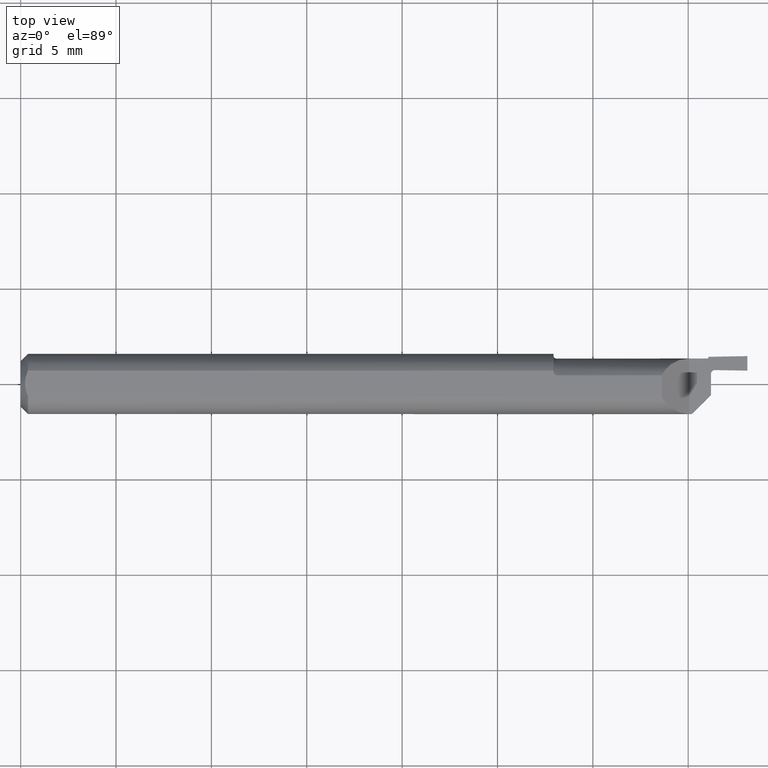
[diagram: clean part render]
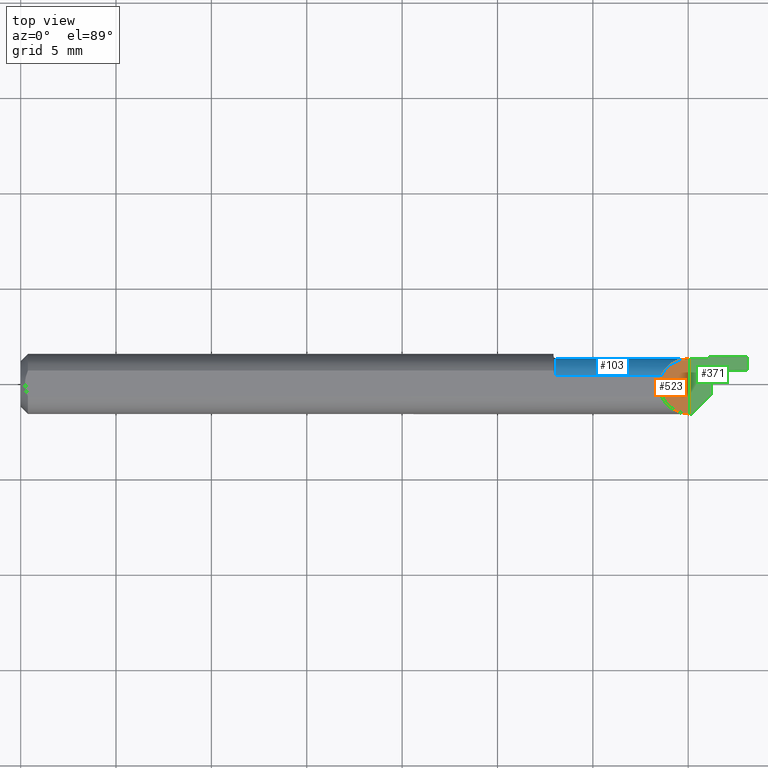
[diagram: same view with three faces highlighted in distinct colors, each labeled with its STEP entity id]
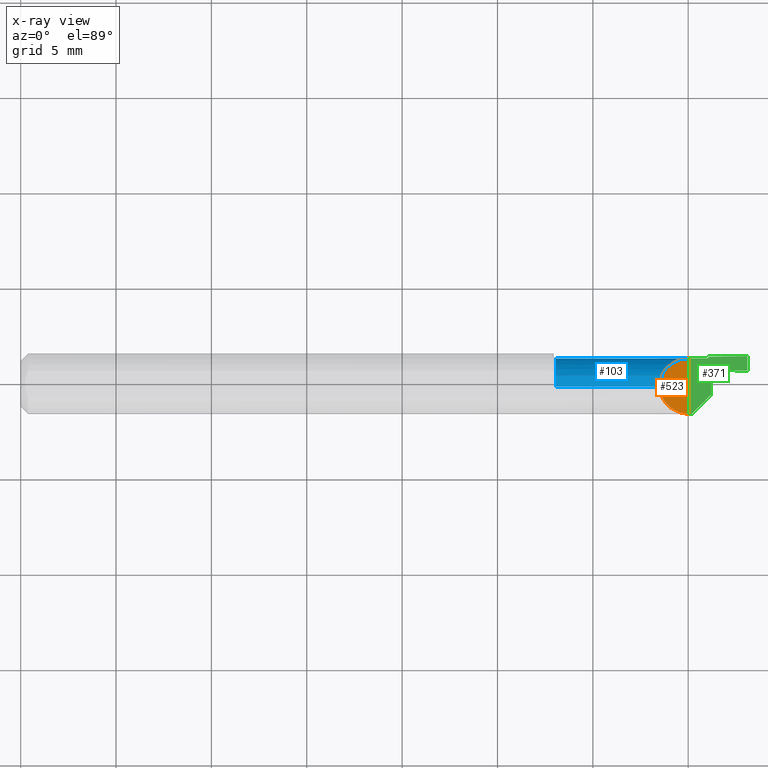
[diagram: x-ray of the same camera — body ghosted, the three highlighted faces saturated]
A machine part, top view with three faces highlighted in distinct colors.
The next image is the same camera in x-ray (body ghosted, the three faces saturated) — at least one of them is partly hidden behind the body in this view.
Their STEP definitions:

[orange] entity #523 — the highlighted planar face has unit normal (0.7071, -0, 0.7071).
#53 = CARTESIAN_POINT ( 'NONE',  ( 1.323499999999999677, -0.02668707552355638682, 0.05634999999999998344 ) ) ;
#78 = CARTESIAN_POINT ( 'NONE',  ( 1.323499999999999677, -0.02668707552355638682, 0.05634999999999998344 ) ) ;
#116 = ORIENTED_EDGE ( 'NONE', *, *, #660, .F. ) ;
#184 = VERTEX_POINT ( 'NONE', #294 ) ;
#199 = LINE ( 'NONE', #799, #829 ) ;
#205 = DIRECTION ( 'NONE',  ( -0.000000000000000000, 1.000000000000000000, 0.000000000000000000 ) ) ;
#211 = DIRECTION ( 'NONE',  ( 0.000000000000000000, -1.000000000000000000, 0.000000000000000000 ) ) ;
#216 = CARTESIAN_POINT ( 'NONE',  ( 1.334111011196256191, -0.04909232110324725923, 0.04573898880374377418 ) ) ;
#224 = CARTESIAN_POINT ( 'NONE',  ( 1.379849999999998911, -0.06235000000000000264, 0.000000000000000000 ) ) ;
#264 = VERTEX_POINT ( 'NONE', #661 ) ;
#275 = ORIENTED_EDGE ( 'NONE', *, *, #469, .F. ) ;
#294 = CARTESIAN_POINT ( 'NONE',  ( 1.379849999999998911, 0.05234923835978042006, 0.000000000000000000 ) ) ;
#296 = CARTESIAN_POINT ( 'NONE',  ( 1.380000000000000115, 0.1623500000000000498, -0.0001500000000009617284 ) ) ;
#318 =( BOUNDED_CURVE ( )  B_SPLINE_CURVE ( 3, ( #407, #416, #496, #341 ),
 .UNSPECIFIED., .F., .T. ) 
 B_SPLINE_CURVE_WITH_KNOTS ( ( 4, 4 ),
 ( 4.712388980384691450, 5.835843171780464189 ),
 .UNSPECIFIED. ) 
 CURVE ( )  GEOMETRIC_REPRESENTATION_ITEM ( )  RATIONAL_B_SPLINE_CURVE ( ( 1.000000000000000000, 0.8975576256340724868, 0.8975576256340724868, 1.000000000000000000 ) ) 
 REPRESENTATION_ITEM ( '' )  );
#320 = VERTEX_POINT ( 'NONE', #53 ) ;
#322 =( BOUNDED_CURVE ( )  B_SPLINE_CURVE ( 3, ( #224, #558, #216, #78 ),
 .UNSPECIFIED., .F., .T. ) 
 B_SPLINE_CURVE_WITH_KNOTS ( ( 4, 4 ),
 ( 4.712388980384690562, 5.840883988228529944 ),
 .UNSPECIFIED. ) 
 CURVE ( )  GEOMETRIC_REPRESENTATION_ITEM ( )  RATIONAL_B_SPLINE_CURVE ( ( 1.000000000000000000, 0.8966608397084915305, 0.8966608397084915305, 1.000000000000000000 ) ) 
 REPRESENTATION_ITEM ( '' )  );
#341 = CARTESIAN_POINT ( 'NONE',  ( 1.323499999999999677, 0.01688490924104376137, 0.05635000000000000425 ) ) ;
#393 = ORIENTED_EDGE ( 'NONE', *, *, #410, .T. ) ;
#407 = CARTESIAN_POINT ( 'NONE',  ( 1.379849999999998911, 0.05234923835978042006, 0.000000000000000000 ) ) ;
#408 = EDGE_CURVE ( 'NONE', #320, #264, #199, .T. ) ;
#410 = EDGE_CURVE ( 'NONE', #184, #264, #318, .T. ) ;
#416 = CARTESIAN_POINT ( 'NONE',  ( 1.355123235926974923, 0.05234923835978042700, 0.02472676407302463325 ) ) ;
#429 = CARTESIAN_POINT ( 'NONE',  ( 1.379849999999998911, -0.06235000000000000264, 0.000000000000000000 ) ) ;
#469 = EDGE_CURVE ( 'NONE', #184, #535, #794, .T. ) ;
#496 = CARTESIAN_POINT ( 'NONE',  ( 1.334196074486990735, 0.03917855972928278863, 0.04565392551300904989 ) ) ;
#509 = AXIS2_PLACEMENT_3D ( 'NONE', #296, #825, #833 ) ;
#515 = ORIENTED_EDGE ( 'NONE', *, *, #408, .F. ) ;
#523 = ADVANCED_FACE ( 'NONE', ( #646 ), #819, .T. ) ;
#535 = VERTEX_POINT ( 'NONE', #429 ) ;
#552 = CARTESIAN_POINT ( 'NONE',  ( 1.379849999999998911, -0.1623500000000000498, 0.000000000000000000 ) ) ;
#558 = CARTESIAN_POINT ( 'NONE',  ( 1.355059102717058428, -0.06235000000000000958, 0.02479089728294102402 ) ) ;
#646 = FACE_OUTER_BOUND ( 'NONE', #738, .T. ) ;
#660 = EDGE_CURVE ( 'NONE', #535, #320, #322, .T. ) ;
#661 = CARTESIAN_POINT ( 'NONE',  ( 1.323499999999999677, 0.01688490924104376137, 0.05635000000000000425 ) ) ;
#738 = EDGE_LOOP ( 'NONE', ( #275, #393, #515, #116 ) ) ;
#761 = VECTOR ( 'NONE', #211, 39.37007874015748143 ) ;
#794 = LINE ( 'NONE', #552, #761 ) ;
#799 = CARTESIAN_POINT ( 'NONE',  ( 1.323499999999999677, 0.02668707552355638682, 0.05635000000000000425 ) ) ;
#819 = PLANE ( 'NONE',  #509 ) ;
#825 = DIRECTION ( 'NONE',  ( 0.7071067811865514585, -0.000000000000000000, 0.7071067811865436870 ) ) ;
#829 = VECTOR ( 'NONE', #205, 39.37007874015748143 ) ;
#833 = DIRECTION ( 'NONE',  ( 0.7071067811865435759, 0.000000000000000000, -0.7071067811865513475 ) ) ;

[blue] entity #103 — the highlighted cylindrical surface (edge-blend (fillet) strip) has radius 1.5875 mm, axis along (-1, -0, -0).
#6 = CARTESIAN_POINT ( 'NONE',  ( 1.414646748416369837, 0.04911742446637919202, -0.01986130268372147262 ) ) ;
#13 = CIRCLE ( 'NONE', #731, 0.06249999999999999306 ) ;
#16 = DIRECTION ( 'NONE',  ( -1.000000000000000000, -0.000000000000000000, -0.000000000000000000 ) ) ;
#19 = LINE ( 'NONE', #225, #698 ) ;
#21 = CARTESIAN_POINT ( 'NONE',  ( 1.417000000000000259, -0.01015076164021955218, 0.000000000000000000 ) ) ;
#24 = ORIENTED_EDGE ( 'NONE', *, *, #386, .T. ) ;
#66 = DIRECTION ( 'NONE',  ( 1.000000000000000000, 0.000000000000000000, 0.000000000000000000 ) ) ;
#73 = CARTESIAN_POINT ( 'NONE',  ( 1.412866610771963627, 0.04058328200904658817, -0.03650077827929641694 ) ) ;
#75 = VERTEX_POINT ( 'NONE', #73 ) ;
#77 = CARTESIAN_POINT ( 'NONE',  ( 1.412954748534647864, 0.04489863580460894121, -0.02986149759486148372 ) ) ;
#93 = VECTOR ( 'NONE', #712, 39.37007874015748143 ) ;
#103 = ADVANCED_FACE ( 'NONE', ( #415 ), #736, .T. ) ;
#109 = AXIS2_PLACEMENT_3D ( 'NONE', #123, #676, #274 ) ;
#123 = CARTESIAN_POINT ( 'NONE',  ( 1.269052852351982619, -0.01015076164021955218, 0.000000000000000000 ) ) ;
#127 = CARTESIAN_POINT ( 'NONE',  ( 1.269052852351982619, 0.05234923835978044088, 0.000000000000000000 ) ) ;
#140 = ORIENTED_EDGE ( 'NONE', *, *, #410, .F. ) ;
#148 = DIRECTION ( 'NONE',  ( 0.000000000000000000, 0.000000000000000000, 1.000000000000000000 ) ) ;
#152 = EDGE_CURVE ( 'NONE', #170, #612, #19, .T. ) ;
#156 = EDGE_LOOP ( 'NONE', ( #376, #140, #24, #210, #848, #547, #746, #381 ) ) ;
#170 = VERTEX_POINT ( 'NONE', #213 ) ;
#179 = EDGE_CURVE ( 'NONE', #522, #612, #851, .T. ) ;
#184 = VERTEX_POINT ( 'NONE', #294 ) ;
#188 = VECTOR ( 'NONE', #66, 39.37007874015748143 ) ;
#210 = ORIENTED_EDGE ( 'NONE', *, *, #392, .T. ) ;
#213 = CARTESIAN_POINT ( 'NONE',  ( 1.413647483962142459, -0.004152913094841584503, -0.06221154083308579746 ) ) ;
#225 = CARTESIAN_POINT ( 'NONE',  ( 1.261000000000000121, -0.004152913094840908828, -0.06221154083308578359 ) ) ;
#249 = LINE ( 'NONE', #775, #93 ) ;
#264 = VERTEX_POINT ( 'NONE', #661 ) ;
#265 = CARTESIAN_POINT ( 'NONE',  ( 1.412866610771963627, 0.04058328200904658817, -0.03650077827929641694 ) ) ;
#271 = CARTESIAN_POINT ( 'NONE',  ( 1.413647483962142459, -0.004152913094841584503, -0.06221154083308579746 ) ) ;
#274 = DIRECTION ( 'NONE',  ( 0.000000000000000000, 0.000000000000000000, 1.000000000000000000 ) ) ;
#276 = DIRECTION ( 'NONE',  ( -1.000000000000000000, -0.000000000000000000, -0.000000000000000000 ) ) ;
#289 = DIRECTION ( 'NONE',  ( 0.000000000000000000, 0.000000000000000000, 1.000000000000000000 ) ) ;
#294 = CARTESIAN_POINT ( 'NONE',  ( 1.379849999999998911, 0.05234923835978042006, 0.000000000000000000 ) ) ;
#318 =( BOUNDED_CURVE ( )  B_SPLINE_CURVE ( 3, ( #407, #416, #496, #341 ),
 .UNSPECIFIED., .F., .T. ) 
 B_SPLINE_CURVE_WITH_KNOTS ( ( 4, 4 ),
 ( 4.712388980384691450, 5.835843171780464189 ),
 .UNSPECIFIED. ) 
 CURVE ( )  GEOMETRIC_REPRESENTATION_ITEM ( )  RATIONAL_B_SPLINE_CURVE ( ( 1.000000000000000000, 0.8975576256340724868, 0.8975576256340724868, 1.000000000000000000 ) ) 
 REPRESENTATION_ITEM ( '' )  );
#327 = LINE ( 'NONE', #127, #188 ) ;
#341 = CARTESIAN_POINT ( 'NONE',  ( 1.323499999999999677, 0.01688490924104376137, 0.05635000000000000425 ) ) ;
#343 =( BOUNDED_CURVE ( )  B_SPLINE_CURVE ( 3, ( #670, #624, #481, #271 ),
 .UNSPECIFIED., .F., .T. ) 
 B_SPLINE_CURVE_WITH_KNOTS ( ( 4, 4 ),
 ( 0.6236629505347224267, 1.474682838833132337 ),
 .UNSPECIFIED. ) 
 CURVE ( )  GEOMETRIC_REPRESENTATION_ITEM ( )  RATIONAL_B_SPLINE_CURVE ( ( 1.000000000000000000, 0.9405522359588430747, 0.9405522359588430747, 1.000000000000000000 ) ) 
 REPRESENTATION_ITEM ( '' )  );
#346 = CARTESIAN_POINT ( 'NONE',  ( 1.414926136538871670, 0.04941713199400455531, -0.01894169350003658409 ) ) ;
#355 = VERTEX_POINT ( 'NONE', #847 ) ;
#356 = CARTESIAN_POINT ( 'NONE',  ( 1.413936235654420948, 0.04815098449156212518, -0.02260339161782109335 ) ) ;
#376 = ORIENTED_EDGE ( 'NONE', *, *, #625, .T. ) ;
#377 = CARTESIAN_POINT ( 'NONE',  ( 1.104999999999999982, 0.01688490924104400076, 0.05634999999999998344 ) ) ;
#381 = ORIENTED_EDGE ( 'NONE', *, *, #179, .F. ) ;
#386 = EDGE_CURVE ( 'NONE', #184, #656, #327, .T. ) ;
#392 = EDGE_CURVE ( 'NONE', #656, #355, #13, .T. ) ;
#407 = CARTESIAN_POINT ( 'NONE',  ( 1.379849999999998911, 0.05234923835978042006, 0.000000000000000000 ) ) ;
#410 = EDGE_CURVE ( 'NONE', #184, #264, #318, .T. ) ;
#413 = CARTESIAN_POINT ( 'NONE',  ( 1.413634766017836553, 0.04740970941206705536, -0.02443391028162558709 ) ) ;
#415 = FACE_OUTER_BOUND ( 'NONE', #156, .T. ) ;
#416 = CARTESIAN_POINT ( 'NONE',  ( 1.355123235926974923, 0.05234923835978042700, 0.02472676407302463325 ) ) ;
#423 = DIRECTION ( 'NONE',  ( -1.000000000000000000, -0.000000000000000000, -0.000000000000000000 ) ) ;
#447 = EDGE_CURVE ( 'NONE', #355, #75, #482, .T. ) ;
#481 = CARTESIAN_POINT ( 'NONE',  ( 1.413329765481138089, 0.01404916649128679779, -0.06045666842345646247 ) ) ;
#482 = B_SPLINE_CURVE_WITH_KNOTS ( 'NONE', 3,
 ( #605, #752, #749, #346, #6, #356, #413, #77, #619, #265 ),
 .UNSPECIFIED., .F., .F.,
 ( 4, 2, 2, 2, 4 ),
 ( 2.238282517017819589E-07, 7.693498073236771848E-05, 0.0001536461332130336613, 0.0003070684381743656825, 0.0006139130480970296164 ),
 .UNSPECIFIED. ) ;
#496 = CARTESIAN_POINT ( 'NONE',  ( 1.334196074486990735, 0.03917855972928278863, 0.04565392551300904989 ) ) ;
#522 = VERTEX_POINT ( 'NONE', #377 ) ;
#547 = ORIENTED_EDGE ( 'NONE', *, *, #638, .T. ) ;
#605 = CARTESIAN_POINT ( 'NONE',  ( 1.416999999999997817, 0.05034810659660593490, -0.01568875208750613454 ) ) ;
#612 = VERTEX_POINT ( 'NONE', #840 ) ;
#616 = CARTESIAN_POINT ( 'NONE',  ( 1.417000000000000259, 0.05234923835978044088, 0.000000000000000000 ) ) ;
#619 = CARTESIAN_POINT ( 'NONE',  ( 1.412826172858775209, 0.04289996850538967815, -0.03328071341032889929 ) ) ;
#624 = CARTESIAN_POINT ( 'NONE',  ( 1.413053022676813875, 0.02990375113264627169, -0.05134472986550963486 ) ) ;
#625 = EDGE_CURVE ( 'NONE', #522, #264, #249, .T. ) ;
#638 = EDGE_CURVE ( 'NONE', #75, #170, #343, .T. ) ;
#655 = AXIS2_PLACEMENT_3D ( 'NONE', #684, #16, #289 ) ;
#656 = VERTEX_POINT ( 'NONE', #616 ) ;
#661 = CARTESIAN_POINT ( 'NONE',  ( 1.323499999999999677, 0.01688490924104376137, 0.05635000000000000425 ) ) ;
#670 = CARTESIAN_POINT ( 'NONE',  ( 1.412866610771963627, 0.04058328200904658817, -0.03650077827929641694 ) ) ;
#676 = DIRECTION ( 'NONE',  ( -1.000000000000000000, -0.000000000000000000, -0.000000000000000000 ) ) ;
#684 = CARTESIAN_POINT ( 'NONE',  ( 1.104999999999999982, -0.01015076164021955218, 0.000000000000000000 ) ) ;
#698 = VECTOR ( 'NONE', #423, 39.37007874015748143 ) ;
#712 = DIRECTION ( 'NONE',  ( 1.000000000000000000, 0.000000000000000000, 0.000000000000000000 ) ) ;
#731 = AXIS2_PLACEMENT_3D ( 'NONE', #21, #276, #148 ) ;
#736 = CYLINDRICAL_SURFACE ( 'NONE', #109, 0.06250000000000000000 ) ;
#746 = ORIENTED_EDGE ( 'NONE', *, *, #152, .T. ) ;
#749 = CARTESIAN_POINT ( 'NONE',  ( 1.415686706029239517, 0.04995634370225215254, -0.01715393809061281985 ) ) ;
#752 = CARTESIAN_POINT ( 'NONE',  ( 1.416102465556027923, 0.05022007781912756624, -0.01618245586305076811 ) ) ;
#775 = CARTESIAN_POINT ( 'NONE',  ( 1.269052852351982619, 0.01688490924104400076, 0.05634999999999998344 ) ) ;
#840 = CARTESIAN_POINT ( 'NONE',  ( 1.104999999999999982, -0.004152913094840915767, -0.06221154083308578359 ) ) ;
#847 = CARTESIAN_POINT ( 'NONE',  ( 1.416999999999997817, 0.05034810659660593490, -0.01568875208750613454 ) ) ;
#848 = ORIENTED_EDGE ( 'NONE', *, *, #447, .T. ) ;
#851 = CIRCLE ( 'NONE', #655, 0.06250000000000000000 ) ;

[green] entity #371 — the highlighted planar face has unit normal (0, 0, -1).
#2 = EDGE_CURVE ( 'NONE', #35, #446, #607, .T. ) ;
#20 = VERTEX_POINT ( 'NONE', #472 ) ;
#25 = VECTOR ( 'NONE', #417, 39.37007874015748143 ) ;
#32 = ORIENTED_EDGE ( 'NONE', *, *, #386, .F. ) ;
#35 = VERTEX_POINT ( 'NONE', #537 ) ;
#64 = DIRECTION ( 'NONE',  ( 0.9998476951563914916, 0.01745240643726934937, 0.000000000000000000 ) ) ;
#66 = DIRECTION ( 'NONE',  ( 1.000000000000000000, 0.000000000000000000, 0.000000000000000000 ) ) ;
#68 = CARTESIAN_POINT ( 'NONE',  ( 1.500000000000000222, -0.1623500000000000498, 0.000000000000000000 ) ) ;
#89 = DIRECTION ( 'NONE',  ( -1.000000000000000000, -0.000000000000000000, -0.000000000000000000 ) ) ;
#106 = DIRECTION ( 'NONE',  ( -1.000000000000000000, 0.000000000000000000, 0.000000000000000000 ) ) ;
#122 = DIRECTION ( 'NONE',  ( 0.000000000000000000, 0.000000000000000000, -1.000000000000000000 ) ) ;
#127 = CARTESIAN_POINT ( 'NONE',  ( 1.269052852351982619, 0.05234923835978044088, 0.000000000000000000 ) ) ;
#129 = VERTEX_POINT ( 'NONE', #691 ) ;
#136 = CARTESIAN_POINT ( 'NONE',  ( 1.420000000000000151, -0.1623500000000000498, 0.000000000000000000 ) ) ;
#173 = VECTOR ( 'NONE', #64, 39.37007874015748143 ) ;
#184 = VERTEX_POINT ( 'NONE', #294 ) ;
#188 = VECTOR ( 'NONE', #66, 39.37007874015748143 ) ;
#191 = EDGE_CURVE ( 'NONE', #656, #677, #247, .T. ) ;
#211 = DIRECTION ( 'NONE',  ( 0.000000000000000000, -1.000000000000000000, 0.000000000000000000 ) ) ;
#218 = CIRCLE ( 'NONE', #559, 0.008000000000000024453 ) ;
#228 = EDGE_CURVE ( 'NONE', #20, #535, #354, .T. ) ;
#235 = CARTESIAN_POINT ( 'NONE',  ( 0.000000000000000000, -0.06234999999999999570, 0.000000000000000000 ) ) ;
#237 = CARTESIAN_POINT ( 'NONE',  ( 1.433139705841341094, 0.02851628913543899010, 0.000000000000000000 ) ) ;
#247 = CIRCLE ( 'NONE', #421, 0.002999999999999940648 ) ;
#270 = VECTOR ( 'NONE', #89, 39.37007874015748143 ) ;
#279 = DIRECTION ( 'NONE',  ( -1.000000000000000000, 0.000000000000000000, 0.000000000000000000 ) ) ;
#282 = CARTESIAN_POINT ( 'NONE',  ( 1.383346754350654573, 0.02938542833667606366, 0.000000000000000000 ) ) ;
#294 = CARTESIAN_POINT ( 'NONE',  ( 1.379849999999998911, 0.05234923835978042006, 0.000000000000000000 ) ) ;
#295 = ORIENTED_EDGE ( 'NONE', *, *, #626, .T. ) ;
#304 = ORIENTED_EDGE ( 'NONE', *, *, #228, .F. ) ;
#305 = AXIS2_PLACEMENT_3D ( 'NONE', #602, #122, #531 ) ;
#309 = ORIENTED_EDGE ( 'NONE', *, *, #713, .F. ) ;
#327 = LINE ( 'NONE', #127, #188 ) ;
#330 = DIRECTION ( 'NONE',  ( 0.000000000000000000, 0.000000000000000000, -1.000000000000000000 ) ) ;
#334 = ORIENTED_EDGE ( 'NONE', *, *, #824, .T. ) ;
#345 = ORIENTED_EDGE ( 'NONE', *, *, #191, .F. ) ;
#350 = EDGE_CURVE ( 'NONE', #129, #591, #218, .T. ) ;
#354 = LINE ( 'NONE', #235, #270 ) ;
#371 = ADVANCED_FACE ( 'NONE', ( #463 ), #723, .F. ) ;
#384 = CARTESIAN_POINT ( 'NONE',  ( 1.425000000000000266, -0.02234999999999998446, 0.000000000000000000 ) ) ;
#386 = EDGE_CURVE ( 'NONE', #184, #656, #327, .T. ) ;
#390 = LINE ( 'NONE', #282, #668 ) ;
#409 = DIRECTION ( 'NONE',  ( 0.000000000000000000, 1.000000000000000000, 0.000000000000000000 ) ) ;
#417 = DIRECTION ( 'NONE',  ( 0.000000000000000000, 1.000000000000000000, 0.000000000000000000 ) ) ;
#421 = AXIS2_PLACEMENT_3D ( 'NONE', #567, #427, #279 ) ;
#422 = CARTESIAN_POINT ( 'NONE',  ( 1.420000000000000151, 0.05595283316552415731, 4.268512490100411279E-18 ) ) ;
#427 = DIRECTION ( 'NONE',  ( -0.000000000000000000, -0.000000000000000000, 1.000000000000000000 ) ) ;
#429 = CARTESIAN_POINT ( 'NONE',  ( 1.379849999999998911, -0.06235000000000000264, 0.000000000000000000 ) ) ;
#434 = LINE ( 'NONE', #762, #763 ) ;
#446 = VERTEX_POINT ( 'NONE', #681 ) ;
#451 = VECTOR ( 'NONE', #729, 39.37007874015748143 ) ;
#463 = FACE_OUTER_BOUND ( 'NONE', #518, .T. ) ;
#469 = EDGE_CURVE ( 'NONE', #184, #535, #794, .T. ) ;
#472 = CARTESIAN_POINT ( 'NONE',  ( 1.384999999999999787, -0.06234999999999998183, 0.000000000000000000 ) ) ;
#493 = VECTOR ( 'NONE', #409, 39.37007874015748143 ) ;
#518 = EDGE_LOOP ( 'NONE', ( #309, #345, #32, #720, #304, #334, #782, #572, #295, #711, #645 ) ) ;
#528 = CARTESIAN_POINT ( 'NONE',  ( 1.433000000000000274, 0.02051750908561918857, 0.000000000000000000 ) ) ;
#531 = DIRECTION ( 'NONE',  ( -1.000000000000000000, 0.000000000000000000, -0.000000000000000000 ) ) ;
#535 = VERTEX_POINT ( 'NONE', #429 ) ;
#537 = CARTESIAN_POINT ( 'NONE',  ( 1.500000000000000222, 0.02734923835978043602, 0.000000000000000000 ) ) ;
#540 = LINE ( 'NONE', #136, #493 ) ;
#549 = LINE ( 'NONE', #816, #25 ) ;
#552 = CARTESIAN_POINT ( 'NONE',  ( 1.379849999999998911, -0.1623500000000000498, 0.000000000000000000 ) ) ;
#559 = AXIS2_PLACEMENT_3D ( 'NONE', #528, #330, #106 ) ;
#567 = CARTESIAN_POINT ( 'NONE',  ( 1.417000000000000259, 0.05534923835978045048, 0.000000000000000000 ) ) ;
#572 = ORIENTED_EDGE ( 'NONE', *, *, #350, .T. ) ;
#583 = VERTEX_POINT ( 'NONE', #384 ) ;
#591 = VERTEX_POINT ( 'NONE', #237 ) ;
#602 = CARTESIAN_POINT ( 'NONE',  ( 1.380000000000000115, -0.1623500000000000498, 0.000000000000000000 ) ) ;
#606 = DIRECTION ( 'NONE',  ( 0.9998476951563914916, -0.01745240643727502539, 0.000000000000000000 ) ) ;
#607 = LINE ( 'NONE', #68, #451 ) ;
#616 = CARTESIAN_POINT ( 'NONE',  ( 1.417000000000000259, 0.05234923835978044088, 0.000000000000000000 ) ) ;
#626 = EDGE_CURVE ( 'NONE', #591, #35, #390, .T. ) ;
#645 = ORIENTED_EDGE ( 'NONE', *, *, #659, .F. ) ;
#656 = VERTEX_POINT ( 'NONE', #616 ) ;
#659 = EDGE_CURVE ( 'NONE', #696, #446, #809, .T. ) ;
#668 = VECTOR ( 'NONE', #606, 39.37007874015747433 ) ;
#677 = VERTEX_POINT ( 'NONE', #728 ) ;
#681 = CARTESIAN_POINT ( 'NONE',  ( 1.499999999999999778, 0.05734923835978043838, 1.067128122525102820E-17 ) ) ;
#683 = CARTESIAN_POINT ( 'NONE',  ( 1.587573935358369992, 0.05887784708747906964, 4.268512490100411279E-18 ) ) ;
#687 = EDGE_CURVE ( 'NONE', #583, #129, #549, .T. ) ;
#691 = CARTESIAN_POINT ( 'NONE',  ( 1.425000000000000266, 0.02051750908561918857, 0.000000000000000000 ) ) ;
#694 = DIRECTION ( 'NONE',  ( 0.7071067811865509034, 0.7071067811865440200, 0.000000000000000000 ) ) ;
#696 = VERTEX_POINT ( 'NONE', #422 ) ;
#711 = ORIENTED_EDGE ( 'NONE', *, *, #2, .T. ) ;
#713 = EDGE_CURVE ( 'NONE', #677, #696, #540, .T. ) ;
#720 = ORIENTED_EDGE ( 'NONE', *, *, #469, .T. ) ;
#723 = PLANE ( 'NONE',  #305 ) ;
#728 = CARTESIAN_POINT ( 'NONE',  ( 1.420000000000000151, 0.05534923835978045048, 0.000000000000000000 ) ) ;
#729 = DIRECTION ( 'NONE',  ( 0.000000000000000000, 1.000000000000000000, 0.000000000000000000 ) ) ;
#761 = VECTOR ( 'NONE', #211, 39.37007874015748143 ) ;
#762 = CARTESIAN_POINT ( 'NONE',  ( 1.332499999999999796, -0.1148499999999994248, 0.000000000000000000 ) ) ;
#763 = VECTOR ( 'NONE', #694, 39.37007874015748854 ) ;
#782 = ORIENTED_EDGE ( 'NONE', *, *, #687, .T. ) ;
#794 = LINE ( 'NONE', #552, #761 ) ;
#809 = LINE ( 'NONE', #683, #173 ) ;
#816 = CARTESIAN_POINT ( 'NONE',  ( 1.425000000000000266, -0.1623500000000000498, 0.000000000000000000 ) ) ;
#824 = EDGE_CURVE ( 'NONE', #20, #583, #434, .T. ) ;